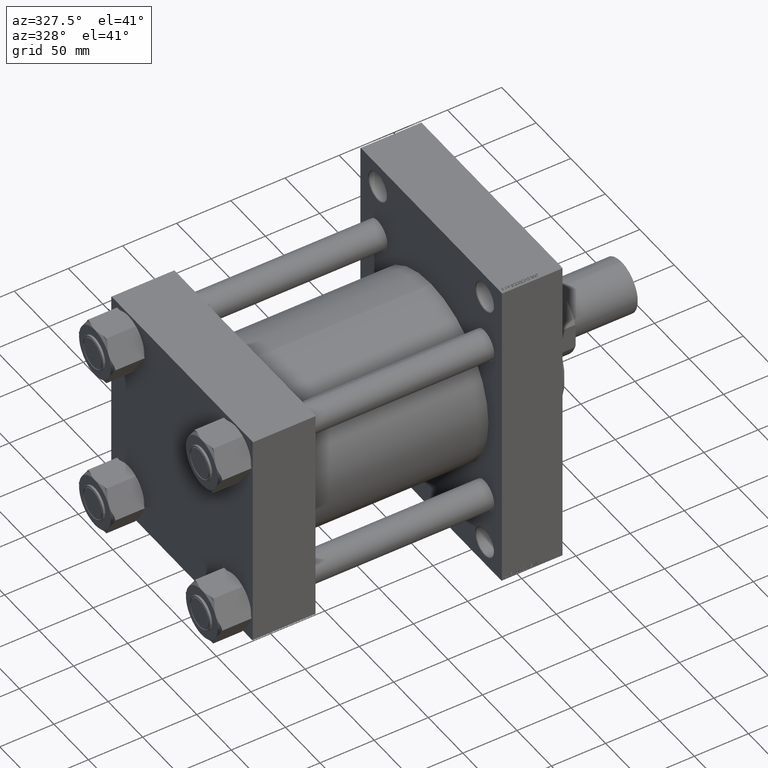
[diagram: clean part render]
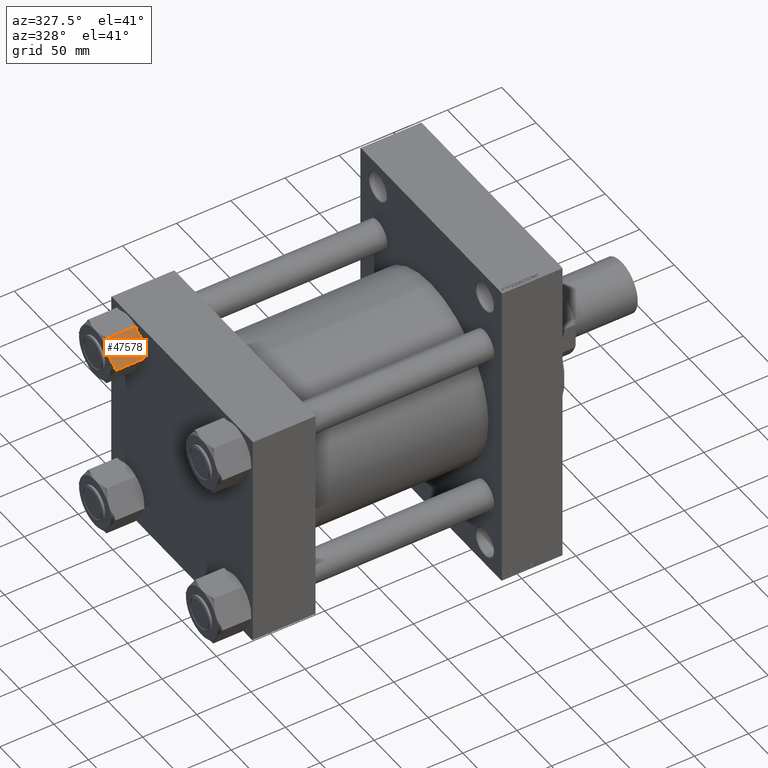
[diagram: same view with one face highlighted and labeled with its STEP entity id]
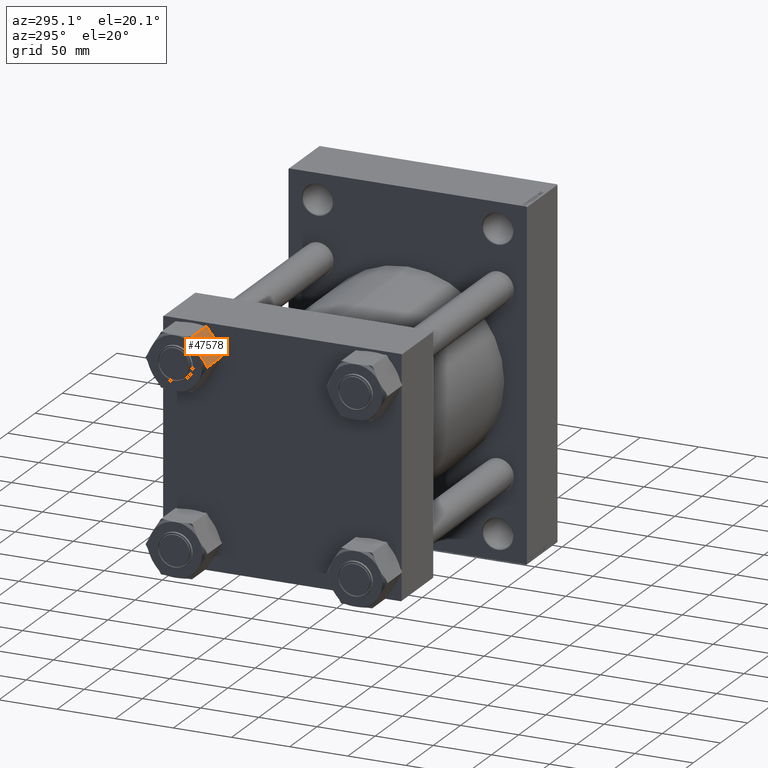
[diagram: same view with one face highlighted and labeled with its STEP entity id]
A machine part, auxiliary view. The second image highlights one B-rep face of the part: STEP entity #47578.
A second angle (auxiliary view) of the same face is appended — the face is thin or edge-on in the first view.
In plain terms, the highlighted planar face has unit normal (0, 0.866, -0.5).
Its self-contained STEP definition (entity closure, byte-faithful):
#210 = AXIS2_PLACEMENT_3D ( 'NONE', #3672, #36794, #38161 ) ;
#1057 = ORIENTED_EDGE ( 'NONE', *, *, #21056, .F. ) ;
#1120 = VERTEX_POINT ( 'NONE', #46935 ) ;
#1793 = CARTESIAN_POINT ( 'NONE',  ( -22.05804950302956158, -7.901530042366876394, -0.3633963927283424544 ) ) ;
#2037 = CARTESIAN_POINT ( 'NONE',  ( -21.64584558940375558, -8.615488163845524738, -0.2290702059543221203 ) ) ;
#2455 = DIRECTION ( 'NONE',  ( -0.4999999999999996669, 0.8660254037844388186, 0.000000000000000000 ) ) ;
#2937 = CARTESIAN_POINT ( 'NONE',  ( -13.31000000000000405, -23.05359624874176205, -28.99999999999999645 ) ) ;
#2983 = CARTESIAN_POINT ( 'NONE',  ( -26.62000000000000455, 1.322753825639812332E-14, -28.99999999999999645 ) ) ;
#3023 = EDGE_CURVE ( 'NONE', #9650, #27100, #21732, .T. ) ;
#3184 = CARTESIAN_POINT ( 'NONE',  ( -19.96500000000001762, -11.52679812437087747, -31.00000000000000000 ) ) ;
#3211 = EDGE_CURVE ( 'NONE', #15075, #9650, #32386, .T. ) ;
#3672 = CARTESIAN_POINT ( 'NONE',  ( -13.31000000000000405, -23.05359624874176205, -31.00000000000000000 ) ) ;
#4504 = CARTESIAN_POINT ( 'NONE',  ( -18.90939003826338194, -13.35516821107453644, -30.90723860914737386 ) ) ;
#4924 = LINE ( 'NONE', #19766, #47175 ) ;
#5449 = CARTESIAN_POINT ( 'NONE',  ( -19.96500000000001762, -11.52679812437087747, 0.000000000000000000 ) ) ;
#5488 = B_SPLINE_CURVE_WITH_KNOTS ( 'NONE', 3,
 ( #38830, #37869, #20304, #30536, #42228, #4504, #45409, #19339, #19580, #30769 ),
 .UNSPECIFIED., .F., .F.,
 ( 4, 2, 2, 2, 4 ),
 ( 5.412492187688563870E-07, 0.005006446827219904021, 0.007509399616220476491, 0.008760876010720758389, 0.01001235240522103942 ),
 .UNSPECIFIED. ) ;
#5650 = ORIENTED_EDGE ( 'NONE', *, *, #33962, .F. ) ;
#6450 = B_SPLINE_CURVE_WITH_KNOTS ( 'NONE', 3,
 ( #3184, #18017, #47744, #29213, #30171, #44340, #19448, #11455 ),
 .UNSPECIFIED., .F., .F.,
 ( 4, 2, 2, 4 ),
 ( 0.01001235240522103942, 0.01501505178013396932, 0.01751640146759043254, 0.02001775115504689923 ),
 .UNSPECIFIED. ) ;
#6995 = VECTOR ( 'NONE', #12904, 1000.000000000000000 ) ;
#7329 = PLANE ( 'NONE',  #210 ) ;
#8283 = B_SPLINE_CURVE_WITH_KNOTS ( 'NONE', 3,
 ( #28699, #16783, #28221, #10218, #13393, #9740, #32121, #24577 ),
 .UNSPECIFIED., .F., .F.,
 ( 4, 2, 2, 4 ),
 ( 0.01001235240522103942, 0.01501505178013396238, 0.01751640146759042907, 0.02001775115504689229 ),
 .UNSPECIFIED. ) ;
#8613 = CARTESIAN_POINT ( 'NONE',  ( -23.28230434144013472, -5.781058460827749101, -0.8826024950749967735 ) ) ;
#8825 = VECTOR ( 'NONE', #2455, 1000.000000000000000 ) ;
#8853 = CARTESIAN_POINT ( 'NONE',  ( -21.02060996173662843, -9.698428037667206070, -0.09276139085262687101 ) ) ;
#9510 = DIRECTION ( 'NONE',  ( 0.4999999999999996669, -0.8660254037844388186, 0.000000000000000000 ) ) ;
#9533 = VERTEX_POINT ( 'NONE', #33741 ) ;
#9650 = VERTEX_POINT ( 'NONE', #2983 ) ;
#9740 = CARTESIAN_POINT ( 'NONE',  ( -15.85409835805183221, -18.64708863314343290, -1.410264737635122945 ) ) ;
#10218 = CARTESIAN_POINT ( 'NONE',  ( -17.06315302221505092, -16.55294452568460173, -0.7059057375046209337 ) ) ;
#10327 = EDGE_CURVE ( 'NONE', #37012, #1120, #5488, .T. ) ;
#10372 = VECTOR ( 'NONE', #11030, 1000.000000000000000 ) ;
#11030 = DIRECTION ( 'NONE',  ( -0.000000000000000000, -0.000000000000000000, 1.000000000000000000 ) ) ;
#11455 = CARTESIAN_POINT ( 'NONE',  ( -24.86944657925255342, -3.032047466098072963, -28.99999999999999645 ) ) ;
#11525 = CARTESIAN_POINT ( 'NONE',  ( -19.96500000000001762, -11.52679812437087747, 0.000000000000000000 ) ) ;
#11837 = CARTESIAN_POINT ( 'NONE',  ( -15.06055342074746051, -20.02154878264367355, -28.99999999999999645 ) ) ;
#12904 = DIRECTION ( 'NONE',  ( -0.4999999999999996669, 0.8660254037844388186, 0.000000000000000000 ) ) ;
#13393 = CARTESIAN_POINT ( 'NONE',  ( -16.65815586667606141, -17.25442017599901234, -0.9177057102691476009 ) ) ;
#13812 = EDGE_CURVE ( 'NONE', #9533, #36223, #4924, .T. ) ;
#14657 = ORIENTED_EDGE ( 'NONE', *, *, #3211, .F. ) ;
#15075 = VERTEX_POINT ( 'NONE', #37950 ) ;
#16664 = CARTESIAN_POINT ( 'NONE',  ( -13.31000000000000405, -23.05359624874176205, -2.000000000000001776 ) ) ;
#16783 = CARTESIAN_POINT ( 'NONE',  ( -19.11853726258805253, -12.99291459228220802, 2.486436982233420767E-14 ) ) ;
#16809 = VECTOR ( 'NONE', #31767, 1000.000000000000000 ) ;
#16877 = CARTESIAN_POINT ( 'NONE',  ( -20.81104382412701526, -10.06140723555302330, -0.05818196640764964483 ) ) ;
#18017 = CARTESIAN_POINT ( 'NONE',  ( -20.81146273741196140, -10.06068165645953805, -31.00000000000002132 ) ) ;
#18171 = EDGE_CURVE ( 'NONE', #1120, #15075, #6450, .T. ) ;
#18438 = ORIENTED_EDGE ( 'NONE', *, *, #13812, .T. ) ;
#18842 = VERTEX_POINT ( 'NONE', #11525 ) ;
#19339 = CARTESIAN_POINT ( 'NONE',  ( -19.54050862441264869, -12.26203875426297962, -30.98821302260235200 ) ) ;
#19448 = CARTESIAN_POINT ( 'NONE',  ( -24.47560625466584483, -3.714198918351685030, -29.30838987161982345 ) ) ;
#19580 = CARTESIAN_POINT ( 'NONE',  ( -19.75324869229453739, -11.89356214788588950, -31.00000000000002487 ) ) ;
#19766 = CARTESIAN_POINT ( 'NONE',  ( -13.31000000000000405, -23.05359624874176205, -31.00000000000000000 ) ) ;
#20304 = CARTESIAN_POINT ( 'NONE',  ( -16.64769565855987210, -17.27253778791400052, -30.11739750492499823 ) ) ;
#20447 = LINE ( 'NONE', #39210, #6995 ) ;
#21056 = EDGE_CURVE ( 'NONE', #22137, #36223, #46762, .T. ) ;
#21439 = ORIENTED_EDGE ( 'NONE', *, *, #10327, .F. ) ;
#21533 = EDGE_CURVE ( 'NONE', #9533, #37012, #20447, .T. ) ;
#21732 = LINE ( 'NONE', #22451, #10372 ) ;
#22137 = VERTEX_POINT ( 'NONE', #44914 ) ;
#22451 = CARTESIAN_POINT ( 'NONE',  ( -26.62000000000000455, 1.322753825639812332E-14, -31.00000000000000000 ) ) ;
#23927 = ORIENTED_EDGE ( 'NONE', *, *, #29610, .F. ) ;
#24213 = LINE ( 'NONE', #42739, #16809 ) ;
#24577 = CARTESIAN_POINT ( 'NONE',  ( -15.06055342074746584, -20.02154878264366289, -2.000000000000000000 ) ) ;
#27100 = VERTEX_POINT ( 'NONE', #31639 ) ;
#27828 = CARTESIAN_POINT ( 'NONE',  ( -24.86944657925254987, -3.032047466098083177, -2.000000000000000000 ) ) ;
#27954 = VECTOR ( 'NONE', #9510, 1000.000000000000000 ) ;
#28221 = CARTESIAN_POINT ( 'NONE',  ( -18.28824786674792691, -14.43101801086297620, -0.1878618656617356830 ) ) ;
#28699 = CARTESIAN_POINT ( 'NONE',  ( -19.96500000000001762, -11.52679812437087747, 0.000000000000000000 ) ) ;
#29213 = CARTESIAN_POINT ( 'NONE',  ( -22.86684697778496300, -6.500651723057134568, -30.29409426249537773 ) ) ;
#29610 = EDGE_CURVE ( 'NONE', #27100, #35813, #24213, .T. ) ;
#30171 = CARTESIAN_POINT ( 'NONE',  ( -23.27184413332395252, -5.799176072742724841, -30.08229428973085362 ) ) ;
#30536 = CARTESIAN_POINT ( 'NONE',  ( -17.87195049697043814, -15.15206620637486523, -30.63660360727165965 ) ) ;
#30748 = CARTESIAN_POINT ( 'NONE',  ( -20.38949137558736524, -10.79155749447876289, -0.01178697739764910171 ) ) ;
#30769 = CARTESIAN_POINT ( 'NONE',  ( -19.96500000000001762, -11.52679812437087747, -31.00000000000000000 ) ) ;
#31639 = CARTESIAN_POINT ( 'NONE',  ( -26.62000000000000455, 1.322753825639812332E-14, -2.000000000000001776 ) ) ;
#31731 = ORIENTED_EDGE ( 'NONE', *, *, #45247, .F. ) ;
#31767 = DIRECTION ( 'NONE',  ( 0.4999999999999996669, -0.8660254037844388186, 0.000000000000000000 ) ) ;
#31887 = CARTESIAN_POINT ( 'NONE',  ( -13.31000000000000405, -23.05359624874176205, -2.000000000000001776 ) ) ;
#32121 = CARTESIAN_POINT ( 'NONE',  ( -15.45439374533417975, -19.33939733039004238, -1.691610128380183209 ) ) ;
#32386 = LINE ( 'NONE', #2937, #8825 ) ;
#33741 = CARTESIAN_POINT ( 'NONE',  ( -13.31000000000000405, -23.05359624874176205, -28.99999999999999645 ) ) ;
#33962 = EDGE_CURVE ( 'NONE', #18842, #22137, #8283, .T. ) ;
#34487 = FACE_OUTER_BOUND ( 'NONE', #45267, .T. ) ;
#35060 = B_SPLINE_CURVE_WITH_KNOTS ( 'NONE', 3,
 ( #27828, #38810, #8613, #1793, #2037, #8853, #16877, #30748, #46114, #5449 ),
 .UNSPECIFIED., .F., .F.,
 ( 4, 2, 2, 2, 4 ),
 ( 5.412492187803855642E-07, 0.005006446827219912694, 0.007509399616220479093, 0.008760876010720760124, 0.01001235240522103942 ),
 .UNSPECIFIED. ) ;
#35813 = VERTEX_POINT ( 'NONE', #44297 ) ;
#36223 = VERTEX_POINT ( 'NONE', #16664 ) ;
#36794 = DIRECTION ( 'NONE',  ( 0.8660254037844388186, 0.4999999999999996669, 0.000000000000000000 ) ) ;
#37012 = VERTEX_POINT ( 'NONE', #11837 ) ;
#37378 = ORIENTED_EDGE ( 'NONE', *, *, #3023, .F. ) ;
#37869 = CARTESIAN_POINT ( 'NONE',  ( -15.84797143746254733, -18.65770077089800694, -29.61657409342406311 ) ) ;
#37950 = CARTESIAN_POINT ( 'NONE',  ( -24.86944657925255342, -3.032047466098072963, -28.99999999999999645 ) ) ;
#38161 = DIRECTION ( 'NONE',  ( -0.4999999999999996669, 0.8660254037844388186, 0.000000000000000000 ) ) ;
#38810 = CARTESIAN_POINT ( 'NONE',  ( -24.08202856253746305, -4.395895477843739130, -1.383425906575931341 ) ) ;
#38830 = CARTESIAN_POINT ( 'NONE',  ( -15.06055342074746051, -20.02154878264367355, -28.99999999999999645 ) ) ;
#39210 = CARTESIAN_POINT ( 'NONE',  ( -13.31000000000000405, -23.05359624874176205, -28.99999999999999645 ) ) ;
#42228 = CARTESIAN_POINT ( 'NONE',  ( -18.28415441059625834, -14.43810808489622133, -30.77092979404567785 ) ) ;
#42448 = ORIENTED_EDGE ( 'NONE', *, *, #18171, .F. ) ;
#42739 = CARTESIAN_POINT ( 'NONE',  ( -13.31000000000000405, -23.05359624874176205, -2.000000000000001776 ) ) ;
#44297 = CARTESIAN_POINT ( 'NONE',  ( -24.86944657925254987, -3.032047466098083177, -2.000000000000000000 ) ) ;
#44340 = CARTESIAN_POINT ( 'NONE',  ( -24.07590164194817817, -4.406507615598305172, -29.58973526236487928 ) ) ;
#44914 = CARTESIAN_POINT ( 'NONE',  ( -15.06055342074746584, -20.02154878264366289, -2.000000000000000000 ) ) ;
#45247 = EDGE_CURVE ( 'NONE', #35813, #18842, #35060, .T. ) ;
#45267 = EDGE_LOOP ( 'NONE', ( #45456, #18438, #1057, #5650, #31731, #23927, #37378, #14657, #42448, #21439 ) ) ;
#45409 = CARTESIAN_POINT ( 'NONE',  ( -19.11895617587300222, -12.99218901318872099, -30.94181803359235516 ) ) ;
#45456 = ORIENTED_EDGE ( 'NONE', *, *, #21533, .F. ) ;
#46086 = DIRECTION ( 'NONE',  ( -0.000000000000000000, -0.000000000000000000, 1.000000000000000000 ) ) ;
#46114 = CARTESIAN_POINT ( 'NONE',  ( -20.17675130770547298, -11.16003410085585124, 2.535969586693416292E-14 ) ) ;
#46762 = LINE ( 'NONE', #31887, #27954 ) ;
#46935 = CARTESIAN_POINT ( 'NONE',  ( -19.96500000000001762, -11.52679812437087747, -31.00000000000000000 ) ) ;
#47175 = VECTOR ( 'NONE', #46086, 1000.000000000000000 ) ;
#47578 = ADVANCED_FACE ( 'NONE', ( #34487 ), #7329, .F. ) ;
#47744 = CARTESIAN_POINT ( 'NONE',  ( -21.64175213325209413, -8.622578237878768093, -30.81213813433826587 ) ) ;